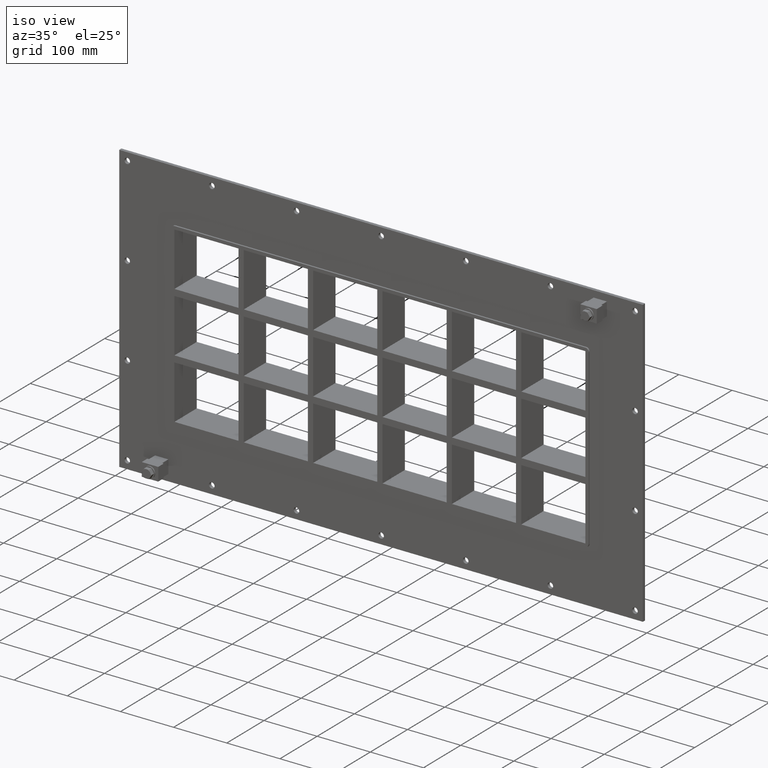
[diagram: clean part render]
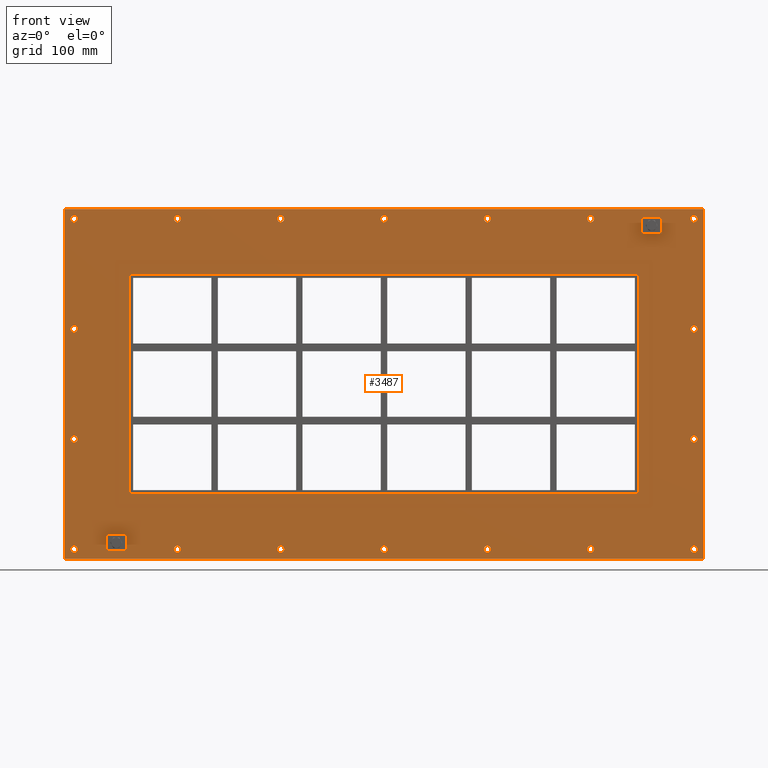
[diagram: tour spotlight — one face highlighted and labeled with its STEP entity id]
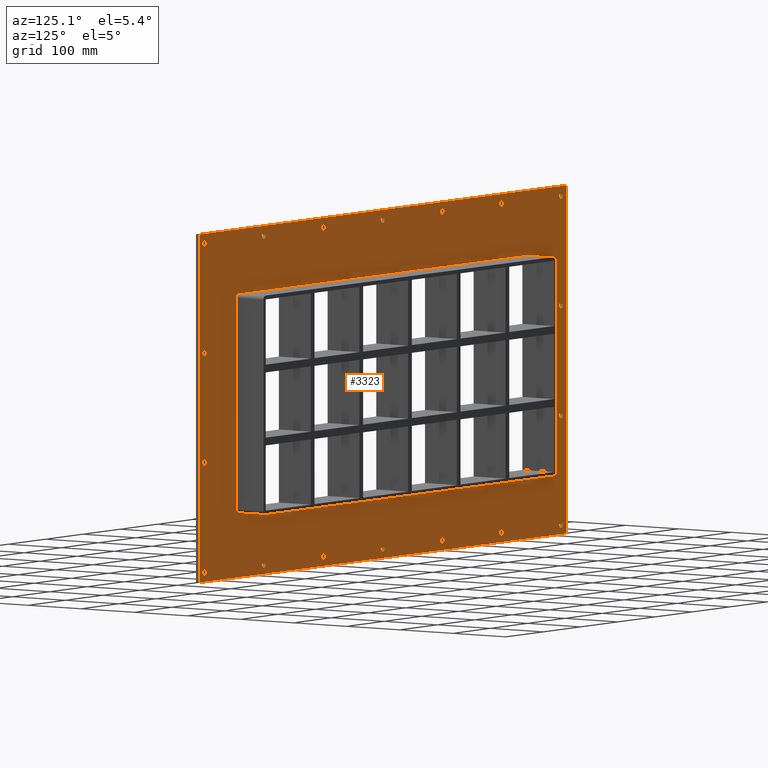
[diagram: tour spotlight — one face highlighted and labeled with its STEP entity id]
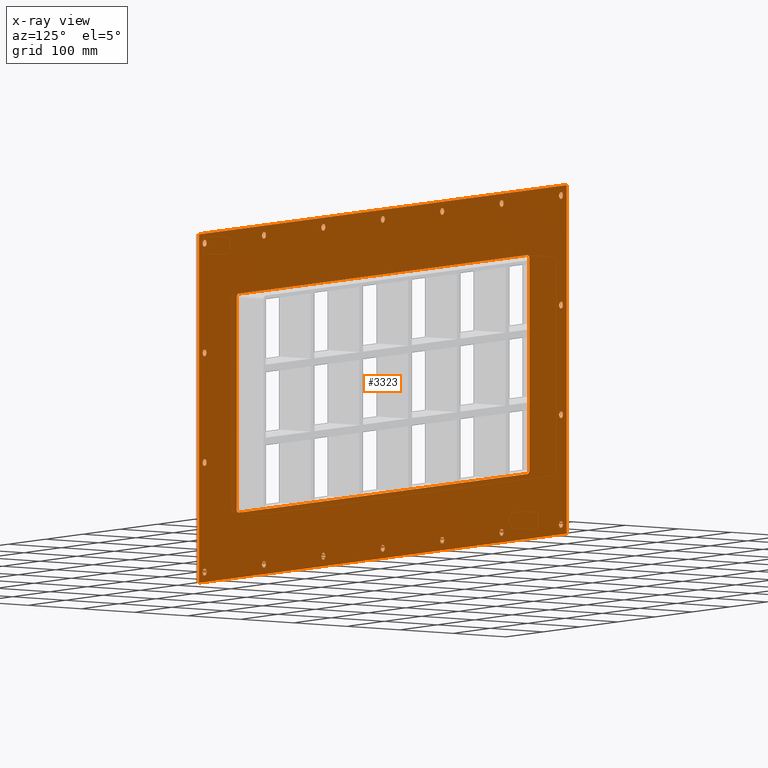
[diagram: x-ray of the same camera — body ghosted, this tour face saturated]
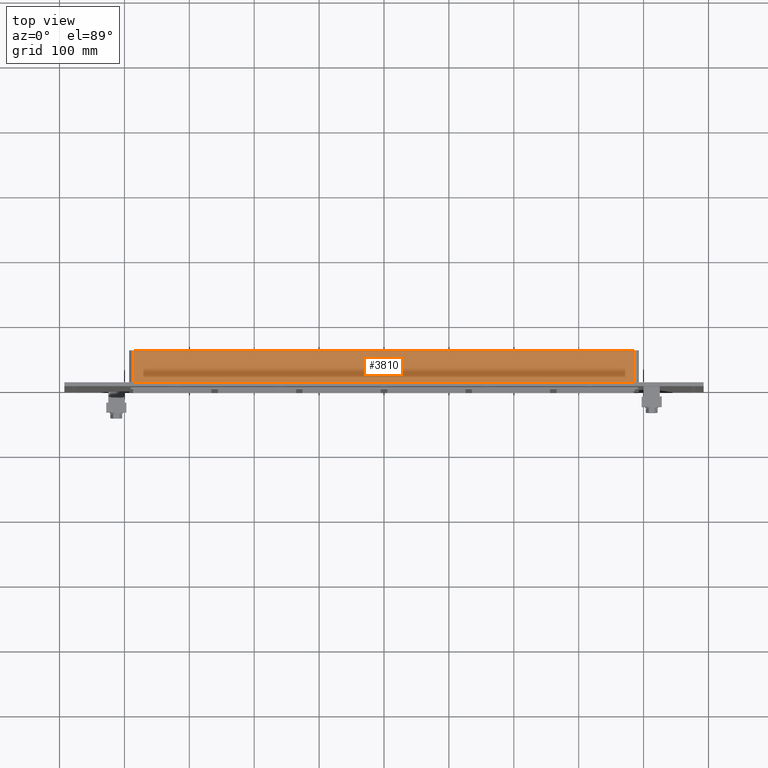
[diagram: tour spotlight — one face highlighted and labeled with its STEP entity id]
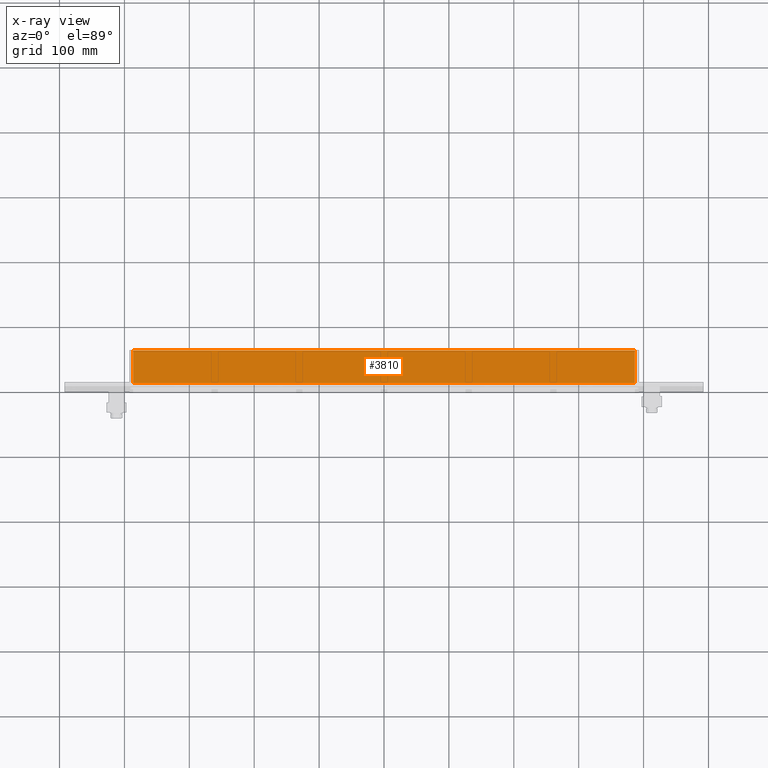
[diagram: x-ray of the same camera — body ghosted, this tour face saturated]
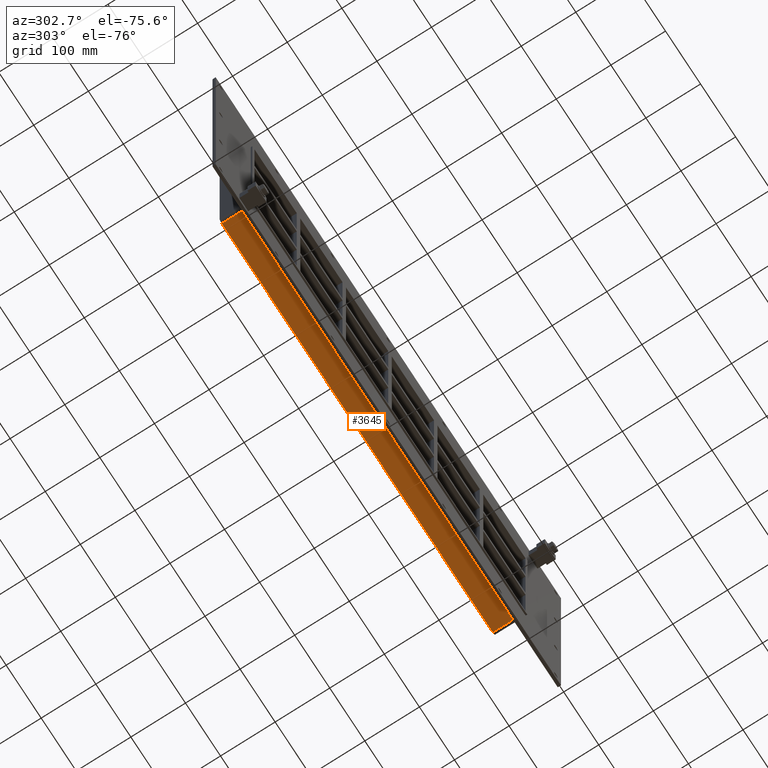
[diagram: tour spotlight — one face highlighted and labeled with its STEP entity id]
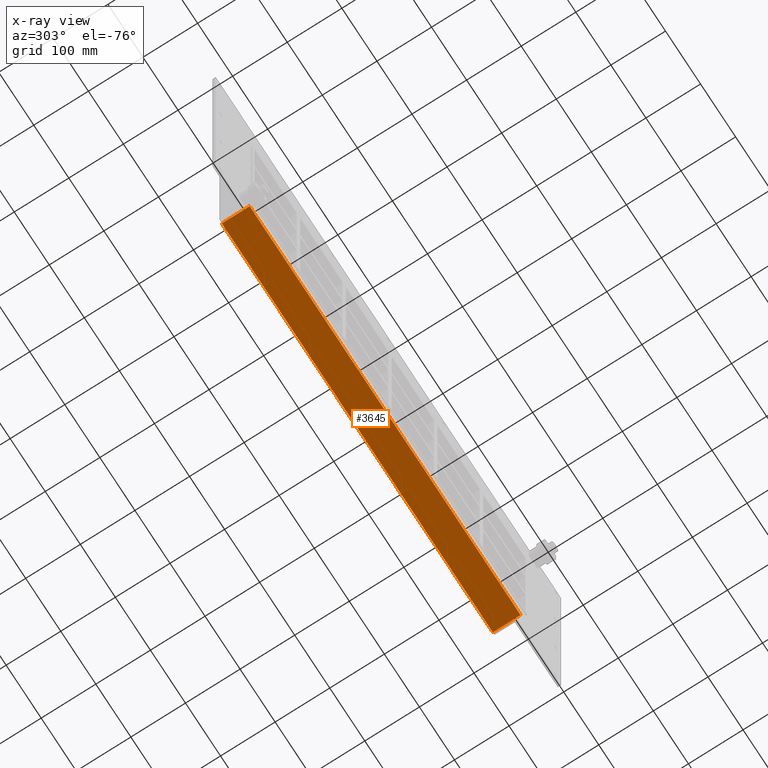
[diagram: x-ray of the same camera — body ghosted, this tour face saturated]
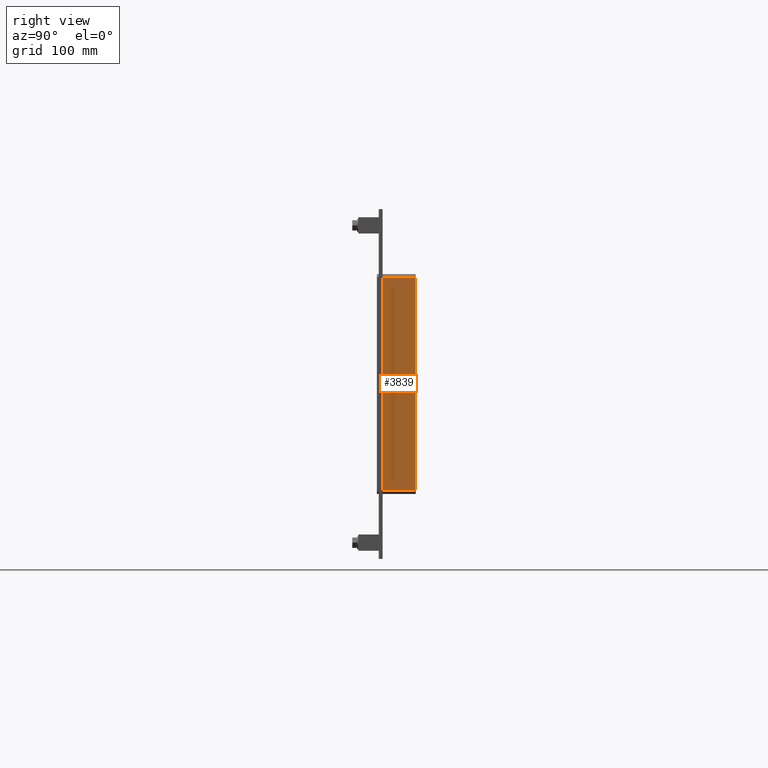
[diagram: tour spotlight — one face highlighted and labeled with its STEP entity id]
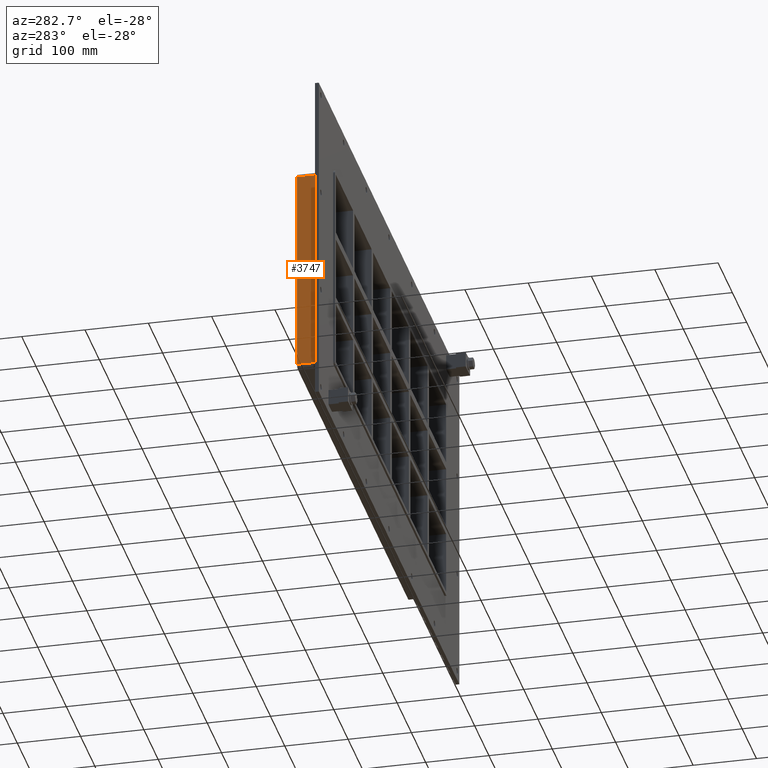
[diagram: tour spotlight — one face highlighted and labeled with its STEP entity id]
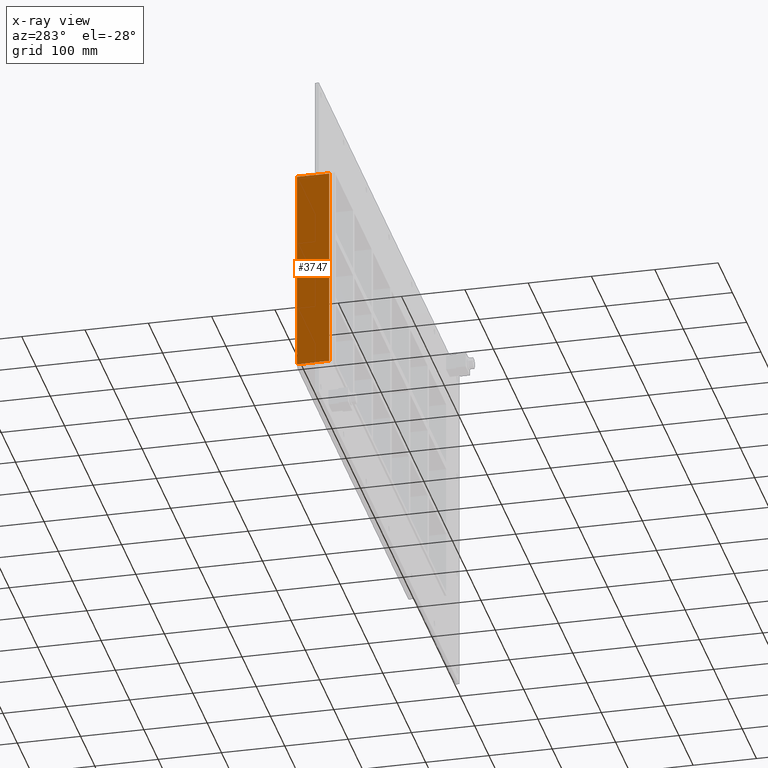
[diagram: x-ray of the same camera — body ghosted, this tour face saturated]
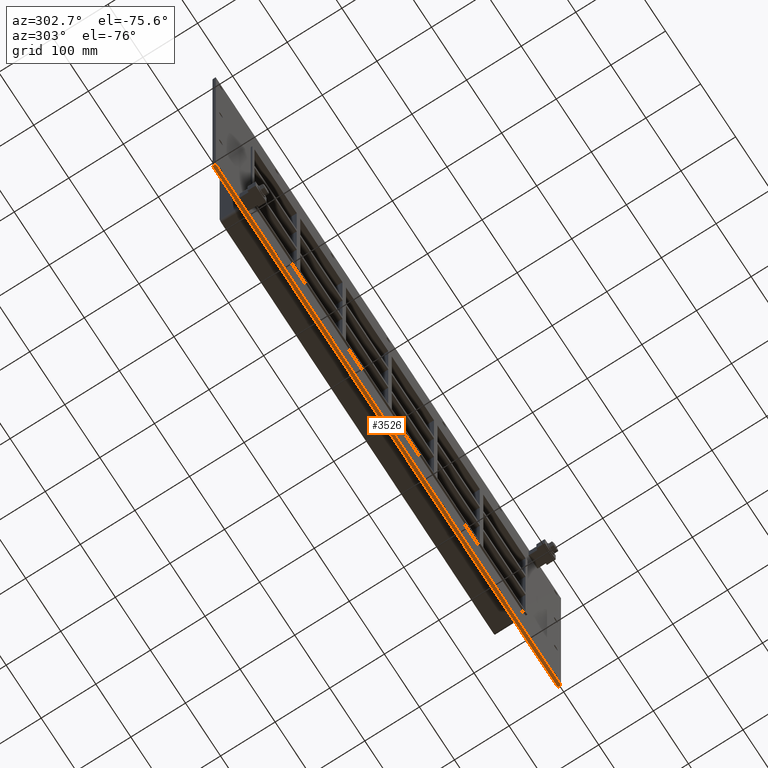
[diagram: tour spotlight — one face highlighted and labeled with its STEP entity id]
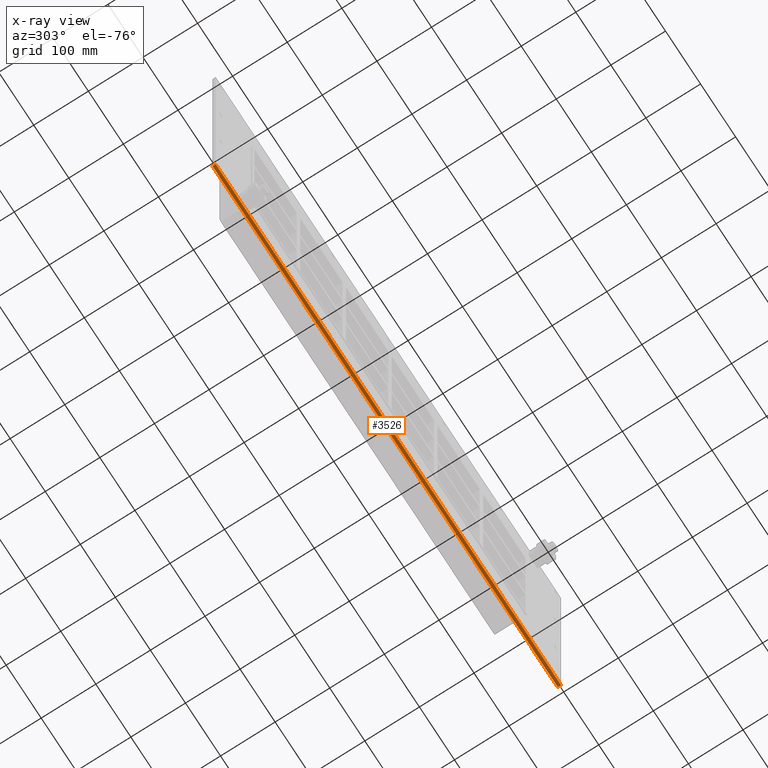
[diagram: x-ray of the same camera — body ghosted, this tour face saturated]
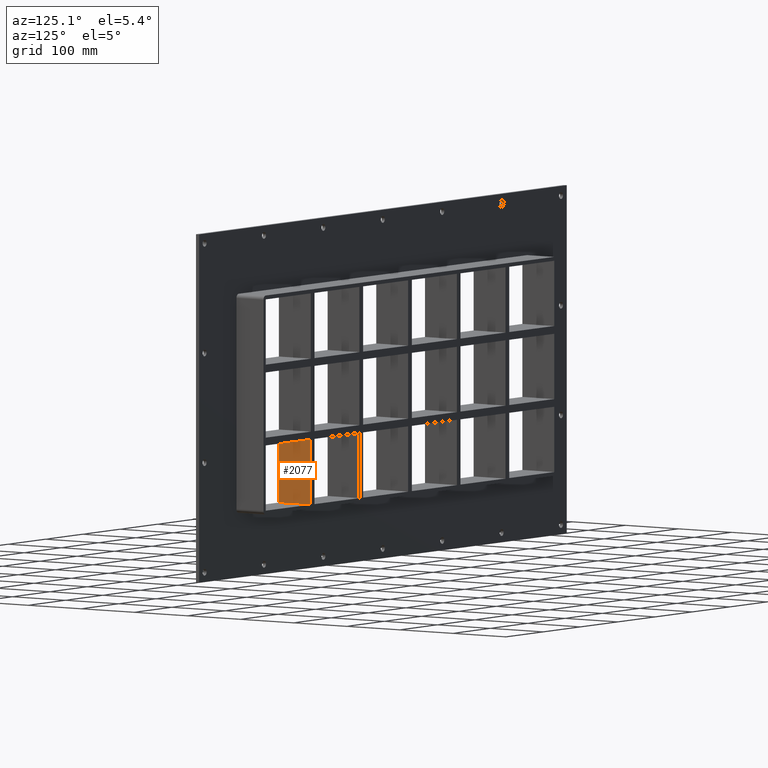
[diagram: tour spotlight — one face highlighted and labeled with its STEP entity id]
A machine part: a face-by-face anatomy tour. The part has 192 B-rep faces; the first image is the clean iso view, then the 8 largest visible faces are spotlighted one at a time (largest first), each with its STEP entity span.

Face 1 — front view, entity #3487. In plain terms, the highlighted planar face has unit normal (0, 1, 0).
Definition (entity closure, byte-faithful):
#84=CARTESIAN_POINT('',(-472.25000000000028,0.0,-254.50000000000014));
#85=VERTEX_POINT('',#84);
#86=CARTESIAN_POINT('',(-477.50000000000028,0.0,-254.50000000000014));
#87=DIRECTION('',(0.0,1.0,0.0));
#88=DIRECTION('',(1.0,0.0,0.0));
#89=AXIS2_PLACEMENT_3D('',#86,#87,#88);
#90=CIRCLE('',#89,5.25);
#91=EDGE_CURVE('',#85,#85,#90,.T.);
#112=CARTESIAN_POINT('',(482.94999999999965,0.0,-84.800000000000153));
#113=VERTEX_POINT('',#112);
#114=CARTESIAN_POINT('',(477.6999999999997,0.0,-84.800000000000153));
#115=DIRECTION('',(0.0,1.0,0.0));
#116=DIRECTION('',(1.0,0.0,0.0));
#117=AXIS2_PLACEMENT_3D('',#114,#115,#116);
#118=CIRCLE('',#117,5.25);
#119=EDGE_CURVE('',#113,#113,#118,.T.);
#140=CARTESIAN_POINT('',(-472.25000000000028,0.0,-84.800000000000153));
#141=VERTEX_POINT('',#140);
#142=CARTESIAN_POINT('',(-477.50000000000028,0.0,-84.800000000000153));
#143=DIRECTION('',(0.0,1.0,0.0));
#144=DIRECTION('',(1.0,0.0,0.0));
#145=AXIS2_PLACEMENT_3D('',#142,#143,#144);
#146=CIRCLE('',#145,5.25);
#147=EDGE_CURVE('',#141,#141,#146,.T.);
#168=CARTESIAN_POINT('',(482.94999999999965,0.0,84.899999999999835));
#169=VERTEX_POINT('',#168);
#170=CARTESIAN_POINT('',(477.6999999999997,0.0,84.899999999999835));
#171=DIRECTION('',(0.0,1.0,0.0));
#172=DIRECTION('',(1.0,0.0,0.0));
#173=AXIS2_PLACEMENT_3D('',#170,#171,#172);
#174=CIRCLE('',#173,5.25);
#175=EDGE_CURVE('',#169,#169,#174,.T.);
#196=CARTESIAN_POINT('',(-472.25000000000028,0.0,84.899999999999835));
#197=VERTEX_POINT('',#196);
#198=CARTESIAN_POINT('',(-477.50000000000028,0.0,84.899999999999835));
#199=DIRECTION('',(0.0,1.0,0.0));
#200=DIRECTION('',(1.0,0.0,0.0));
#201=AXIS2_PLACEMENT_3D('',#198,#199,#200);
#202=CIRCLE('',#201,5.25);
#203=EDGE_CURVE('',#197,#197,#202,.T.);
#224=CARTESIAN_POINT('',(-313.0500000000003,0.0,254.59999999999982));
#225=VERTEX_POINT('',#224);
#226=CARTESIAN_POINT('',(-318.3000000000003,0.0,254.59999999999982));
#227=DIRECTION('',(0.0,1.0,0.0));
#228=DIRECTION('',(1.0,0.0,0.0));
#229=AXIS2_PLACEMENT_3D('',#226,#227,#228);
#230=CIRCLE('',#229,5.25);
#231=EDGE_CURVE('',#225,#225,#230,.T.);
#252=CARTESIAN_POINT('',(-313.0500000000003,0.0,-254.50000000000011));
#253=VERTEX_POINT('',#252);
#254=CARTESIAN_POINT('',(-318.3000000000003,0.0,-254.50000000000011));
#255=DIRECTION('',(0.0,1.0,0.0));
#256=DIRECTION('',(1.0,0.0,0.0));
#257=AXIS2_PLACEMENT_3D('',#254,#255,#256);
#258=CIRCLE('',#257,5.25);
#259=EDGE_CURVE('',#253,#253,#258,.T.);
#280=CARTESIAN_POINT('',(-153.85000000000031,0.0,254.59999999999982));
#281=VERTEX_POINT('',#280);
#282=CARTESIAN_POINT('',(-159.10000000000031,0.0,254.59999999999982));
#283=DIRECTION('',(0.0,1.0,0.0));
#284=DIRECTION('',(1.0,0.0,0.0));
#285=AXIS2_PLACEMENT_3D('',#282,#283,#284);
#286=CIRCLE('',#285,5.25);
#287=EDGE_CURVE('',#281,#281,#286,.T.);
#308=CARTESIAN_POINT('',(-153.85000000000031,0.0,-254.50000000000011));
#309=VERTEX_POINT('',#308);
#310=CARTESIAN_POINT('',(-159.10000000000031,0.0,-254.50000000000011));
#311=DIRECTION('',(0.0,1.0,0.0));
#312=DIRECTION('',(1.0,0.0,0.0));
#313=AXIS2_PLACEMENT_3D('',#310,#311,#312);
#314=CIRCLE('',#313,5.25);
#315=EDGE_CURVE('',#309,#309,#314,.T.);
#336=CARTESIAN_POINT('',(5.349999999999699,0.0,254.59999999999982));
#337=VERTEX_POINT('',#336);
#338=CARTESIAN_POINT('',(0.099999999999714,0.0,254.59999999999982));
#339=DIRECTION('',(0.0,1.0,0.0));
#340=DIRECTION('',(1.0,0.0,0.0));
#341=AXIS2_PLACEMENT_3D('',#338,#339,#340);
#342=CIRCLE('',#341,5.25);
#343=EDGE_CURVE('',#337,#337,#342,.T.);
#364=CARTESIAN_POINT('',(5.349999999999699,0.0,-254.50000000000011));
#365=VERTEX_POINT('',#364);
#366=CARTESIAN_POINT('',(0.099999999999714,0.0,-254.50000000000011));
#367=DIRECTION('',(0.0,1.0,0.0));
#368=DIRECTION('',(1.0,0.0,0.0));
#369=AXIS2_PLACEMENT_3D('',#366,#367,#368);
#370=CIRCLE('',#369,5.25);
#371=EDGE_CURVE('',#365,#365,#370,.T.);
#392=CARTESIAN_POINT('',(164.54999999999961,0.0,254.59999999999982));
#393=VERTEX_POINT('',#392);
#394=CARTESIAN_POINT('',(159.29999999999967,0.0,254.59999999999982));
#395=DIRECTION('',(0.0,1.0,0.0));
#396=DIRECTION('',(1.0,0.0,0.0));
#397=AXIS2_PLACEMENT_3D('',#394,#395,#396);
#398=CIRCLE('',#397,5.25);
#399=EDGE_CURVE('',#393,#393,#398,.T.);
#420=CARTESIAN_POINT('',(164.54999999999961,0.0,-254.50000000000011));
#421=VERTEX_POINT('',#420);
#422=CARTESIAN_POINT('',(159.29999999999967,0.0,-254.50000000000011));
#423=DIRECTION('',(0.0,1.0,0.0));
#424=DIRECTION('',(1.0,0.0,0.0));
#425=AXIS2_PLACEMENT_3D('',#422,#423,#424);
#426=CIRCLE('',#425,5.25);
#427=EDGE_CURVE('',#421,#421,#426,.T.);
#448=CARTESIAN_POINT('',(323.74999999999966,0.0,254.59999999999982));
#449=VERTEX_POINT('',#448);
#450=CARTESIAN_POINT('',(318.49999999999966,0.0,254.59999999999982));
#451=DIRECTION('',(0.0,1.0,0.0));
#452=DIRECTION('',(1.0,0.0,0.0));
#453=AXIS2_PLACEMENT_3D('',#450,#451,#452);
#454=CIRCLE('',#453,5.25);
#455=EDGE_CURVE('',#449,#449,#454,.T.);
#476=CARTESIAN_POINT('',(323.74999999999966,0.0,-254.50000000000011));
#477=VERTEX_POINT('',#476);
#478=CARTESIAN_POINT('',(318.49999999999966,0.0,-254.50000000000011));
#479=DIRECTION('',(0.0,1.0,0.0));
#480=DIRECTION('',(1.0,0.0,0.0));
#481=AXIS2_PLACEMENT_3D('',#478,#479,#480);
#482=CIRCLE('',#481,5.25);
#483=EDGE_CURVE('',#477,#477,#482,.T.);
#504=CARTESIAN_POINT('',(482.94999999999965,0.0,-254.50000000000011));
#505=VERTEX_POINT('',#504);
#506=CARTESIAN_POINT('',(477.6999999999997,0.0,-254.50000000000011));
#507=DIRECTION('',(0.0,1.0,0.0));
#508=DIRECTION('',(1.0,0.0,0.0));
#509=AXIS2_PLACEMENT_3D('',#506,#507,#508);
#510=CIRCLE('',#509,5.25);
#511=EDGE_CURVE('',#505,#505,#510,.T.);
#532=CARTESIAN_POINT('',(-472.25000000000028,0.0,254.59999999999982));
#533=VERTEX_POINT('',#532);
#534=CARTESIAN_POINT('',(-477.50000000000028,0.0,254.59999999999982));
#535=DIRECTION('',(0.0,1.0,0.0));
#536=DIRECTION('',(1.0,0.0,0.0));
#537=AXIS2_PLACEMENT_3D('',#534,#535,#536);
#538=CIRCLE('',#537,5.25);
#539=EDGE_CURVE('',#533,#533,#538,.T.);
#560=CARTESIAN_POINT('',(482.94999999999965,0.0,254.59999999999982));
#561=VERTEX_POINT('',#560);
#562=CARTESIAN_POINT('',(477.6999999999997,0.0,254.59999999999982));
#563=DIRECTION('',(0.0,1.0,0.0));
#564=DIRECTION('',(1.0,0.0,0.0));
#565=AXIS2_PLACEMENT_3D('',#562,#563,#564);
#566=CIRCLE('',#565,5.25);
#567=EDGE_CURVE('',#561,#561,#566,.T.);
#3324=CARTESIAN_POINT('',(-4.475860E-014,0.0,0.0));
#3325=DIRECTION('',(0.0,1.0,0.0));
#3326=DIRECTION('',(0.0,0.0,1.0));
#3327=AXIS2_PLACEMENT_3D('',#3324,#3325,#3326);
#3328=PLANE('',#3327);
#3329=CARTESIAN_POINT('',(-492.50000000000011,0.0,269.50000000000011));
#3330=VERTEX_POINT('',#3329);
#3331=CARTESIAN_POINT('',(492.50000000000006,0.0,269.50000000000011));
#3332=VERTEX_POINT('',#3331);
#3333=CARTESIAN_POINT('',(-492.50000000000011,0.0,269.50000000000011));
#3334=DIRECTION('',(1.0,0.0,0.0));
#3335=VECTOR('',#3334,985.00000000000023);
#3336=LINE('',#3333,#3335);
#3337=EDGE_CURVE('',#3330,#3332,#3336,.T.);
#3338=ORIENTED_EDGE('',*,*,#3337,.F.);
#3339=CARTESIAN_POINT('',(-492.50000000000011,0.0,-269.50000000000011));
#3340=VERTEX_POINT('',#3339);
#3341=CARTESIAN_POINT('',(-492.50000000000011,0.0,-269.50000000000011));
#3342=DIRECTION('',(0.0,0.0,1.0));
#3343=VECTOR('',#3342,539.00000000000023);
#3344=LINE('',#3341,#3343);
#3345=EDGE_CURVE('',#3340,#3330,#3344,.T.);
#3346=ORIENTED_EDGE('',*,*,#3345,.F.);
#3347=CARTESIAN_POINT('',(492.50000000000006,0.0,-269.50000000000011));
#3348=VERTEX_POINT('',#3347);
#3349=CARTESIAN_POINT('',(492.50000000000006,0.0,-269.50000000000011));
#3350=DIRECTION('',(-1.0,0.0,0.0));
#3351=VECTOR('',#3350,985.00000000000023);
#3352=LINE('',#3349,#3351);
#3353=EDGE_CURVE('',#3348,#3340,#3352,.T.);
#3354=ORIENTED_EDGE('',*,*,#3353,.F.);
#3355=CARTESIAN_POINT('',(492.50000000000006,0.0,269.50000000000011));
#3356=DIRECTION('',(0.0,0.0,-1.0));
#3357=VECTOR('',#3356,539.00000000000023);
#3358=LINE('',#3355,#3357);
#3359=EDGE_CURVE('',#3332,#3348,#3358,.T.);
#3360=ORIENTED_EDGE('',*,*,#3359,.F.);
#3361=EDGE_LOOP('',(#3338,#3346,#3354,#3360));
#3362=FACE_OUTER_BOUND('',#3361,.T.);
#3363=ORIENTED_EDGE('',*,*,#91,.T.);
#3364=EDGE_LOOP('',(#3363));
#3365=FACE_BOUND('',#3364,.T.);
#3366=ORIENTED_EDGE('',*,*,#119,.T.);
#3367=EDGE_LOOP('',(#3366));
#3368=FACE_BOUND('',#3367,.T.);
#3369=ORIENTED_EDGE('',*,*,#147,.T.);
#3370=EDGE_LOOP('',(#3369));
#3371=FACE_BOUND('',#3370,.T.);
#3372=ORIENTED_EDGE('',*,*,#175,.T.);
#3373=EDGE_LOOP('',(#3372));
#3374=FACE_BOUND('',#3373,.T.);
#3375=ORIENTED_EDGE('',*,*,#203,.T.);
#3376=EDGE_LOOP('',(#3375));
#3377=FACE_BOUND('',#3376,.T.);
#3378=ORIENTED_EDGE('',*,*,#231,.T.);
#3379=EDGE_LOOP('',(#3378));
#3380=FACE_BOUND('',#3379,.T.);
#3381=ORIENTED_EDGE('',*,*,#259,.T.);
#3382=EDGE_LOOP('',(#3381));
#3383=FACE_BOUND('',#3382,.T.);
#3384=ORIENTED_EDGE('',*,*,#287,.T.);
#3385=EDGE_LOOP('',(#3384));
#3386=FACE_BOUND('',#3385,.T.);
#3387=ORIENTED_EDGE('',*,*,#315,.T.);
#3388=EDGE_LOOP('',(#3387));
#3389=FACE_BOUND('',#3388,.T.);
#3390=ORIENTED_EDGE('',*,*,#343,.T.);
#3391=EDGE_LOOP('',(#3390));
#3392=FACE_BOUND('',#3391,.T.);
#3393=ORIENTED_EDGE('',*,*,#371,.T.);
#3394=EDGE_LOOP('',(#3393));
#3395=FACE_BOUND('',#3394,.T.);
#3396=ORIENTED_EDGE('',*,*,#399,.T.);
#3397=EDGE_LOOP('',(#3396));
#3398=FACE_BOUND('',#3397,.T.);
#3399=ORIENTED_EDGE('',*,*,#427,.T.);
#3400=EDGE_LOOP('',(#3399));
#3401=FACE_BOUND('',#3400,.T.);
#3402=ORIENTED_EDGE('',*,*,#455,.T.);
#3403=EDGE_LOOP('',(#3402));
#3404=FACE_BOUND('',#3403,.T.);
#3405=ORIENTED_EDGE('',*,*,#483,.T.);
#3406=EDGE_LOOP('',(#3405));
#3407=FACE_BOUND('',#3406,.T.);
#3408=ORIENTED_EDGE('',*,*,#511,.T.);
#3409=EDGE_LOOP('',(#3408));
#3410=FACE_BOUND('',#3409,.T.);
#3411=ORIENTED_EDGE('',*,*,#539,.T.);
#3412=EDGE_LOOP('',(#3411));
#3413=FACE_BOUND('',#3412,.T.);
#3414=ORIENTED_EDGE('',*,*,#567,.T.);
#3415=EDGE_LOOP('',(#3414));
#3416=FACE_BOUND('',#3415,.T.);
#3417=CARTESIAN_POINT('',(-386.50000000000006,0.0,169.50000000000006));
#3418=VERTEX_POINT('',#3417);
#3419=CARTESIAN_POINT('',(-392.50000000000006,0.0,163.50000000000006));
#3420=VERTEX_POINT('',#3419);
#3421=CARTESIAN_POINT('',(-386.50000000000006,0.0,163.50000000000006));
#3422=DIRECTION('',(0.0,-1.0,0.0));
#3423=DIRECTION('',(-0.707106781186543,0.0,0.707106781186552));
#3424=AXIS2_PLACEMENT_3D('',#3421,#3422,#3423);
#3425=CIRCLE('',#3424,6.000000000000001);
#3426=EDGE_CURVE('',#3418,#3420,#3425,.T.);
#3427=ORIENTED_EDGE('',*,*,#3426,.F.);
#3428=CARTESIAN_POINT('',(386.50000000000006,0.0,169.50000000000006));
#3429=VERTEX_POINT('',#3428);
#3430=CARTESIAN_POINT('',(386.50000000000006,0.0,169.50000000000006));
#3431=DIRECTION('',(-1.0,0.0,0.0));
#3432=VECTOR('',#3431,773.00000000000011);
#3433=LINE('',#3430,#3432);
#3434=EDGE_CURVE('',#3429,#3418,#3433,.T.);
#3435=ORIENTED_EDGE('',*,*,#3434,.F.);
#3436=CARTESIAN_POINT('',(392.50000000000006,0.0,163.50000000000006));
#3437=VERTEX_POINT('',#3436);
#3438=CARTESIAN_POINT('',(386.50000000000006,0.0,163.50000000000006));
#3439=DIRECTION('',(0.0,-1.0,0.0));
#3440=DIRECTION('',(0.707106781186543,0.0,0.707106781186552));
#3441=AXIS2_PLACEMENT_3D('',#3438,#3439,#3440);
#3442=CIRCLE('',#3441,6.000000000000001);
#3443=EDGE_CURVE('',#3437,#3429,#3442,.T.);
#3444=ORIENTED_EDGE('',*,*,#3443,.F.);
#3445=CARTESIAN_POINT('',(392.50000000000006,0.0,-163.5));
#3446=VERTEX_POINT('',#3445);
#3447=CARTESIAN_POINT('',(392.50000000000006,0.0,-163.5));
#3448=DIRECTION('',(0.0,0.0,1.0));
#3449=VECTOR('',#3448,327.00000000000006);
#3450=LINE('',#3447,#3449);
#3451=EDGE_CURVE('',#3446,#3437,#3450,.T.);
#3452=ORIENTED_EDGE('',*,*,#3451,.F.);
#3453=CARTESIAN_POINT('',(386.50000000000006,0.0,-169.50000000000003));
#3454=VERTEX_POINT('',#3453);
#3455=CARTESIAN_POINT('',(386.50000000000006,0.0,-163.5));
#3456=DIRECTION('',(0.0,-1.0,0.0));
#3457=DIRECTION('',(0.707106781186543,0.0,-0.707106781186552));
#3458=AXIS2_PLACEMENT_3D('',#3455,#3456,#3457);
#3459=CIRCLE('',#3458,6.000000000000001);
#3460=EDGE_CURVE('',#3454,#3446,#3459,.T.);
#3461=ORIENTED_EDGE('',*,*,#3460,.F.);
#3462=CARTESIAN_POINT('',(-386.50000000000006,0.0,-169.50000000000003));
#3463=VERTEX_POINT('',#3462);
#3464=CARTESIAN_POINT('',(-386.5,0.0,-169.50000000000003));
#3465=DIRECTION('',(1.0,0.0,0.0));
#3466=VECTOR('',#3465,773.0);
#3467=LINE('',#3464,#3466);
#3468=EDGE_CURVE('',#3463,#3454,#3467,.T.);
#3469=ORIENTED_EDGE('',*,*,#3468,.F.);
#3470=CARTESIAN_POINT('',(-392.50000000000006,0.0,-163.5));
#3471=VERTEX_POINT('',#3470);
#3472=CARTESIAN_POINT('',(-386.50000000000006,0.0,-163.5));
#3473=DIRECTION('',(0.0,-1.0,0.0));
#3474=DIRECTION('',(-0.707106781186543,0.0,-0.707106781186552));
#3475=AXIS2_PLACEMENT_3D('',#3472,#3473,#3474);
#3476=CIRCLE('',#3475,6.000000000000001);
#3477=EDGE_CURVE('',#3471,#3463,#3476,.T.);
#3478=ORIENTED_EDGE('',*,*,#3477,.F.);
#3479=CARTESIAN_POINT('',(-392.50000000000006,0.0,163.50000000000003));
#3480=DIRECTION('',(0.0,0.0,-1.0));
#3481=VECTOR('',#3480,327.0);
#3482=LINE('',#3479,#3481);
#3483=EDGE_CURVE('',#3420,#3471,#3482,.T.);
#3484=ORIENTED_EDGE('',*,*,#3483,.F.);
#3485=EDGE_LOOP('',(#3427,#3435,#3444,#3452,#3461,#3469,#3478,#3484));
#3486=FACE_BOUND('',#3485,.T.);
#3487=ADVANCED_FACE('',(#3362,#3365,#3368,#3371,#3374,#3377,#3380,#3383,#3386,#3389,#3392,#3395,#3398,#3401,#3404,#3407,#3410,#3413,#3416,#3486),#3328,.F.);

Face 2 — auxiliary view, entity #3323. An x-ray twin of the same camera follows (body ghosted, this face saturated) — the face is partly hidden behind the body. In plain terms, the highlighted planar face has unit normal (0, 1, 0).
Definition (entity closure, byte-faithful):
#73=CARTESIAN_POINT('',(-482.75000000000028,5.999999999999943,-254.50000000000014));
#74=VERTEX_POINT('',#73);
#75=CARTESIAN_POINT('',(-477.50000000000028,5.999999999999943,-254.50000000000014));
#76=DIRECTION('',(0.0,-1.0,0.0));
#77=DIRECTION('',(1.0,0.0,0.0));
#78=AXIS2_PLACEMENT_3D('',#75,#76,#77);
#79=CIRCLE('',#78,5.25);
#80=EDGE_CURVE('',#74,#74,#79,.T.);
#101=CARTESIAN_POINT('',(472.4499999999997,5.999999999999943,-84.800000000000153));
#102=VERTEX_POINT('',#101);
#103=CARTESIAN_POINT('',(477.6999999999997,5.999999999999943,-84.800000000000153));
#104=DIRECTION('',(0.0,-1.0,0.0));
#105=DIRECTION('',(1.0,0.0,0.0));
#106=AXIS2_PLACEMENT_3D('',#103,#104,#105);
#107=CIRCLE('',#106,5.25);
#108=EDGE_CURVE('',#102,#102,#107,.T.);
#129=CARTESIAN_POINT('',(-482.75000000000028,5.999999999999943,-84.800000000000153));
#130=VERTEX_POINT('',#129);
#131=CARTESIAN_POINT('',(-477.50000000000028,5.999999999999943,-84.800000000000153));
#132=DIRECTION('',(0.0,-1.0,0.0));
#133=DIRECTION('',(1.0,0.0,0.0));
#134=AXIS2_PLACEMENT_3D('',#131,#132,#133);
#135=CIRCLE('',#134,5.25);
#136=EDGE_CURVE('',#130,#130,#135,.T.);
#157=CARTESIAN_POINT('',(472.4499999999997,5.999999999999943,84.899999999999835));
#158=VERTEX_POINT('',#157);
#159=CARTESIAN_POINT('',(477.6999999999997,5.999999999999943,84.899999999999835));
#160=DIRECTION('',(0.0,-1.0,0.0));
#161=DIRECTION('',(1.0,0.0,0.0));
#162=AXIS2_PLACEMENT_3D('',#159,#160,#161);
#163=CIRCLE('',#162,5.25);
#164=EDGE_CURVE('',#158,#158,#163,.T.);
#185=CARTESIAN_POINT('',(-482.75000000000028,5.999999999999943,84.899999999999835));
#186=VERTEX_POINT('',#185);
#187=CARTESIAN_POINT('',(-477.50000000000028,5.999999999999943,84.899999999999835));
#188=DIRECTION('',(0.0,-1.0,0.0));
#189=DIRECTION('',(1.0,0.0,0.0));
#190=AXIS2_PLACEMENT_3D('',#187,#188,#189);
#191=CIRCLE('',#190,5.25);
#192=EDGE_CURVE('',#186,#186,#191,.T.);
#213=CARTESIAN_POINT('',(-323.55000000000024,5.999999999999943,254.59999999999982));
#214=VERTEX_POINT('',#213);
#215=CARTESIAN_POINT('',(-318.3000000000003,5.999999999999943,254.59999999999982));
#216=DIRECTION('',(0.0,-1.0,0.0));
#217=DIRECTION('',(1.0,0.0,0.0));
#218=AXIS2_PLACEMENT_3D('',#215,#216,#217);
#219=CIRCLE('',#218,5.25);
#220=EDGE_CURVE('',#214,#214,#219,.T.);
#241=CARTESIAN_POINT('',(-323.55000000000024,5.999999999999943,-254.50000000000011));
#242=VERTEX_POINT('',#241);
#243=CARTESIAN_POINT('',(-318.3000000000003,5.999999999999943,-254.50000000000011));
#244=DIRECTION('',(0.0,-1.0,0.0));
#245=DIRECTION('',(1.0,0.0,0.0));
#246=AXIS2_PLACEMENT_3D('',#243,#244,#245);
#247=CIRCLE('',#246,5.25);
#248=EDGE_CURVE('',#242,#242,#247,.T.);
#269=CARTESIAN_POINT('',(-164.35000000000031,5.999999999999943,254.59999999999982));
#270=VERTEX_POINT('',#269);
#271=CARTESIAN_POINT('',(-159.10000000000031,5.999999999999943,254.59999999999982));
#272=DIRECTION('',(0.0,-1.0,0.0));
#273=DIRECTION('',(1.0,0.0,0.0));
#274=AXIS2_PLACEMENT_3D('',#271,#272,#273);
#275=CIRCLE('',#274,5.25);
#276=EDGE_CURVE('',#270,#270,#275,.T.);
#297=CARTESIAN_POINT('',(-164.35000000000031,5.999999999999943,-254.50000000000011));
#298=VERTEX_POINT('',#297);
#299=CARTESIAN_POINT('',(-159.10000000000031,5.999999999999943,-254.50000000000011));
#300=DIRECTION('',(0.0,-1.0,0.0));
#301=DIRECTION('',(1.0,0.0,0.0));
#302=AXIS2_PLACEMENT_3D('',#299,#300,#301);
#303=CIRCLE('',#302,5.25);
#304=EDGE_CURVE('',#298,#298,#303,.T.);
#325=CARTESIAN_POINT('',(-5.150000000000272,5.999999999999943,254.59999999999982));
#326=VERTEX_POINT('',#325);
#327=CARTESIAN_POINT('',(0.099999999999714,5.999999999999943,254.59999999999982));
#328=DIRECTION('',(0.0,-1.0,0.0));
#329=DIRECTION('',(1.0,0.0,0.0));
#330=AXIS2_PLACEMENT_3D('',#327,#328,#329);
#331=CIRCLE('',#330,5.25);
#332=EDGE_CURVE('',#326,#326,#331,.T.);
#353=CARTESIAN_POINT('',(-5.150000000000272,5.999999999999943,-254.50000000000011));
#354=VERTEX_POINT('',#353);
#355=CARTESIAN_POINT('',(0.099999999999714,5.999999999999943,-254.50000000000011));
#356=DIRECTION('',(0.0,-1.0,0.0));
#357=DIRECTION('',(1.0,0.0,0.0));
#358=AXIS2_PLACEMENT_3D('',#355,#356,#357);
#359=CIRCLE('',#358,5.25);
#360=EDGE_CURVE('',#354,#354,#359,.T.);
#381=CARTESIAN_POINT('',(154.04999999999967,5.999999999999943,254.59999999999982));
#382=VERTEX_POINT('',#381);
#383=CARTESIAN_POINT('',(159.29999999999967,5.999999999999943,254.59999999999982));
#384=DIRECTION('',(0.0,-1.0,0.0));
#385=DIRECTION('',(1.0,0.0,0.0));
#386=AXIS2_PLACEMENT_3D('',#383,#384,#385);
#387=CIRCLE('',#386,5.25);
#388=EDGE_CURVE('',#382,#382,#387,.T.);
#409=CARTESIAN_POINT('',(154.04999999999967,5.999999999999943,-254.50000000000011));
#410=VERTEX_POINT('',#409);
#411=CARTESIAN_POINT('',(159.29999999999967,5.999999999999943,-254.50000000000011));
#412=DIRECTION('',(0.0,-1.0,0.0));
#413=DIRECTION('',(1.0,0.0,0.0));
#414=AXIS2_PLACEMENT_3D('',#411,#412,#413);
#415=CIRCLE('',#414,5.25);
#416=EDGE_CURVE('',#410,#410,#415,.T.);
#437=CARTESIAN_POINT('',(313.24999999999966,5.999999999999943,254.59999999999982));
#438=VERTEX_POINT('',#437);
#439=CARTESIAN_POINT('',(318.49999999999966,5.999999999999943,254.59999999999982));
#440=DIRECTION('',(0.0,-1.0,0.0));
#441=DIRECTION('',(1.0,0.0,0.0));
#442=AXIS2_PLACEMENT_3D('',#439,#440,#441);
#443=CIRCLE('',#442,5.25);
#444=EDGE_CURVE('',#438,#438,#443,.T.);
#465=CARTESIAN_POINT('',(313.24999999999966,5.999999999999943,-254.50000000000011));
#466=VERTEX_POINT('',#465);
#467=CARTESIAN_POINT('',(318.49999999999966,5.999999999999943,-254.50000000000011));
#468=DIRECTION('',(0.0,-1.0,0.0));
#469=DIRECTION('',(1.0,0.0,0.0));
#470=AXIS2_PLACEMENT_3D('',#467,#468,#469);
#471=CIRCLE('',#470,5.25);
#472=EDGE_CURVE('',#466,#466,#471,.T.);
#493=CARTESIAN_POINT('',(472.4499999999997,5.999999999999943,-254.50000000000011));
#494=VERTEX_POINT('',#493);
#495=CARTESIAN_POINT('',(477.6999999999997,5.999999999999943,-254.50000000000011));
#496=DIRECTION('',(0.0,-1.0,0.0));
#497=DIRECTION('',(1.0,0.0,0.0));
#498=AXIS2_PLACEMENT_3D('',#495,#496,#497);
#499=CIRCLE('',#498,5.25);
#500=EDGE_CURVE('',#494,#494,#499,.T.);
#521=CARTESIAN_POINT('',(-482.75000000000028,5.999999999999943,254.59999999999982));
#522=VERTEX_POINT('',#521);
#523=CARTESIAN_POINT('',(-477.50000000000028,5.999999999999943,254.59999999999982));
#524=DIRECTION('',(0.0,-1.0,0.0));
#525=DIRECTION('',(1.0,0.0,0.0));
#526=AXIS2_PLACEMENT_3D('',#523,#524,#525);
#527=CIRCLE('',#526,5.25);
#528=EDGE_CURVE('',#522,#522,#527,.T.);
#549=CARTESIAN_POINT('',(472.4499999999997,5.999999999999943,254.59999999999982));
#550=VERTEX_POINT('',#549);
#551=CARTESIAN_POINT('',(477.6999999999997,5.999999999999943,254.59999999999982));
#552=DIRECTION('',(0.0,-1.0,0.0));
#553=DIRECTION('',(1.0,0.0,0.0));
#554=AXIS2_PLACEMENT_3D('',#551,#552,#553);
#555=CIRCLE('',#554,5.25);
#556=EDGE_CURVE('',#550,#550,#555,.T.);
#3160=CARTESIAN_POINT('',(-4.475860E-014,6.000000000000001,0.0));
#3161=DIRECTION('',(0.0,1.0,0.0));
#3162=DIRECTION('',(0.0,0.0,1.0));
#3163=AXIS2_PLACEMENT_3D('',#3160,#3161,#3162);
#3164=PLANE('',#3163);
#3165=CARTESIAN_POINT('',(-492.50000000000011,6.000000000000001,269.50000000000011));
#3166=VERTEX_POINT('',#3165);
#3167=CARTESIAN_POINT('',(492.50000000000011,6.000000000000001,269.50000000000011));
#3168=VERTEX_POINT('',#3167);
#3169=CARTESIAN_POINT('',(-492.50000000000011,6.000000000000001,269.50000000000011));
#3170=DIRECTION('',(1.0,0.0,0.0));
#3171=VECTOR('',#3170,985.00000000000023);
#3172=LINE('',#3169,#3171);
#3173=EDGE_CURVE('',#3166,#3168,#3172,.T.);
#3174=ORIENTED_EDGE('',*,*,#3173,.T.);
#3175=CARTESIAN_POINT('',(492.50000000000011,6.000000000000001,-269.50000000000011));
#3176=VERTEX_POINT('',#3175);
#3177=CARTESIAN_POINT('',(492.50000000000006,6.000000000000001,269.50000000000011));
#3178=DIRECTION('',(0.0,0.0,-1.0));
#3179=VECTOR('',#3178,539.00000000000023);
#3180=LINE('',#3177,#3179);
#3181=EDGE_CURVE('',#3168,#3176,#3180,.T.);
#3182=ORIENTED_EDGE('',*,*,#3181,.T.);
#3183=CARTESIAN_POINT('',(-492.50000000000011,6.000000000000001,-269.50000000000011));
#3184=VERTEX_POINT('',#3183);
#3185=CARTESIAN_POINT('',(492.50000000000006,6.000000000000001,-269.50000000000011));
#3186=DIRECTION('',(-1.0,0.0,0.0));
#3187=VECTOR('',#3186,985.00000000000023);
#3188=LINE('',#3185,#3187);
#3189=EDGE_CURVE('',#3176,#3184,#3188,.T.);
#3190=ORIENTED_EDGE('',*,*,#3189,.T.);
#3191=CARTESIAN_POINT('',(-492.50000000000011,6.000000000000001,-269.50000000000011));
#3192=DIRECTION('',(0.0,0.0,1.0));
#3193=VECTOR('',#3192,539.00000000000023);
#3194=LINE('',#3191,#3193);
#3195=EDGE_CURVE('',#3184,#3166,#3194,.T.);
#3196=ORIENTED_EDGE('',*,*,#3195,.T.);
#3197=EDGE_LOOP('',(#3174,#3182,#3190,#3196));
#3198=FACE_OUTER_BOUND('',#3197,.T.);
#3199=ORIENTED_EDGE('',*,*,#80,.T.);
#3200=EDGE_LOOP('',(#3199));
#3201=FACE_BOUND('',#3200,.T.);
#3202=ORIENTED_EDGE('',*,*,#108,.T.);
#3203=EDGE_LOOP('',(#3202));
#3204=FACE_BOUND('',#3203,.T.);
#3205=ORIENTED_EDGE('',*,*,#136,.T.);
#3206=EDGE_LOOP('',(#3205));
#3207=FACE_BOUND('',#3206,.T.);
#3208=ORIENTED_EDGE('',*,*,#164,.T.);
#3209=EDGE_LOOP('',(#3208));
#3210=FACE_BOUND('',#3209,.T.);
#3211=ORIENTED_EDGE('',*,*,#192,.T.);
#3212=EDGE_LOOP('',(#3211));
#3213=FACE_BOUND('',#3212,.T.);
#3214=ORIENTED_EDGE('',*,*,#220,.T.);
#3215=EDGE_LOOP('',(#3214));
#3216=FACE_BOUND('',#3215,.T.);
#3217=ORIENTED_EDGE('',*,*,#248,.T.);
#3218=EDGE_LOOP('',(#3217));
#3219=FACE_BOUND('',#3218,.T.);
#3220=ORIENTED_EDGE('',*,*,#276,.T.);
#3221=EDGE_LOOP('',(#3220));
#3222=FACE_BOUND('',#3221,.T.);
#3223=ORIENTED_EDGE('',*,*,#304,.T.);
#3224=EDGE_LOOP('',(#3223));
#3225=FACE_BOUND('',#3224,.T.);
#3226=ORIENTED_EDGE('',*,*,#332,.T.);
#3227=EDGE_LOOP('',(#3226));
#3228=FACE_BOUND('',#3227,.T.);
#3229=ORIENTED_EDGE('',*,*,#360,.T.);
#3230=EDGE_LOOP('',(#3229));
#3231=FACE_BOUND('',#3230,.T.);
#3232=ORIENTED_EDGE('',*,*,#388,.T.);
#3233=EDGE_LOOP('',(#3232));
#3234=FACE_BOUND('',#3233,.T.);
#3235=ORIENTED_EDGE('',*,*,#416,.T.);
#3236=EDGE_LOOP('',(#3235));
#3237=FACE_BOUND('',#3236,.T.);
#3238=ORIENTED_EDGE('',*,*,#444,.T.);
#3239=EDGE_LOOP('',(#3238));
#3240=FACE_BOUND('',#3239,.T.);
#3241=ORIENTED_EDGE('',*,*,#472,.T.);
#3242=EDGE_LOOP('',(#3241));
#3243=FACE_BOUND('',#3242,.T.);
#3244=ORIENTED_EDGE('',*,*,#500,.T.);
#3245=EDGE_LOOP('',(#3244));
#3246=FACE_BOUND('',#3245,.T.);
#3247=ORIENTED_EDGE('',*,*,#528,.T.);
#3248=EDGE_LOOP('',(#3247));
#3249=FACE_BOUND('',#3248,.T.);
#3250=ORIENTED_EDGE('',*,*,#556,.T.);
#3251=EDGE_LOOP('',(#3250));
#3252=FACE_BOUND('',#3251,.T.);
#3253=CARTESIAN_POINT('',(-392.50000000000006,6.000000000000001,163.50000000000006));
#3254=VERTEX_POINT('',#3253);
#3255=CARTESIAN_POINT('',(-386.50000000000006,6.000000000000001,169.50000000000006));
#3256=VERTEX_POINT('',#3255);
#3257=CARTESIAN_POINT('',(-386.50000000000006,6.000000000000001,163.50000000000006));
#3258=DIRECTION('',(0.0,1.0,0.0));
#3259=DIRECTION('',(-0.707106781186543,0.0,0.707106781186552));
#3260=AXIS2_PLACEMENT_3D('',#3257,#3258,#3259);
#3261=CIRCLE('',#3260,6.000000000000001);
#3262=EDGE_CURVE('',#3254,#3256,#3261,.T.);
#3263=ORIENTED_EDGE('',*,*,#3262,.F.);
#3264=CARTESIAN_POINT('',(-392.50000000000006,6.000000000000001,-163.5));
#3265=VERTEX_POINT('',#3264);
#3266=CARTESIAN_POINT('',(-392.50000000000006,6.000000000000001,-163.5));
#3267=DIRECTION('',(0.0,0.0,1.0));
#3268=VECTOR('',#3267,327.0);
#3269=LINE('',#3266,#3268);
#3270=EDGE_CURVE('',#3265,#3254,#3269,.T.);
#3271=ORIENTED_EDGE('',*,*,#3270,.F.);
#3272=CARTESIAN_POINT('',(-386.50000000000006,6.000000000000001,-169.50000000000003));
#3273=VERTEX_POINT('',#3272);
#3274=CARTESIAN_POINT('',(-386.50000000000006,6.000000000000001,-163.5));
#3275=DIRECTION('',(0.0,1.0,0.0));
#3276=DIRECTION('',(-0.707106781186543,0.0,-0.707106781186552));
#3277=AXIS2_PLACEMENT_3D('',#3274,#3275,#3276);
#3278=CIRCLE('',#3277,6.000000000000001);
#3279=EDGE_CURVE('',#3273,#3265,#3278,.T.);
#3280=ORIENTED_EDGE('',*,*,#3279,.F.);
#3281=CARTESIAN_POINT('',(386.50000000000006,6.000000000000001,-169.50000000000003));
#3282=VERTEX_POINT('',#3281);
#3283=CARTESIAN_POINT('',(386.50000000000006,6.000000000000001,-169.50000000000003));
#3284=DIRECTION('',(-1.0,0.0,0.0));
#3285=VECTOR('',#3284,773.0);
#3286=LINE('',#3283,#3285);
#3287=EDGE_CURVE('',#3282,#3273,#3286,.T.);
#3288=ORIENTED_EDGE('',*,*,#3287,.F.);
#3289=CARTESIAN_POINT('',(392.50000000000006,6.000000000000001,-163.5));
#3290=VERTEX_POINT('',#3289);
#3291=CARTESIAN_POINT('',(386.50000000000006,6.000000000000001,-163.5));
#3292=DIRECTION('',(0.0,1.0,0.0));
#3293=DIRECTION('',(0.707106781186543,0.0,-0.707106781186552));
#3294=AXIS2_PLACEMENT_3D('',#3291,#3292,#3293);
#3295=CIRCLE('',#3294,6.000000000000001);
#3296=EDGE_CURVE('',#3290,#3282,#3295,.T.);
#3297=ORIENTED_EDGE('',*,*,#3296,.F.);
#3298=CARTESIAN_POINT('',(392.50000000000006,6.000000000000001,163.50000000000006));
#3299=VERTEX_POINT('',#3298);
#3300=CARTESIAN_POINT('',(392.50000000000006,6.000000000000001,163.50000000000006));
#3301=DIRECTION('',(0.0,0.0,-1.0));
#3302=VECTOR('',#3301,327.00000000000006);
#3303=LINE('',#3300,#3302);
#3304=EDGE_CURVE('',#3299,#3290,#3303,.T.);
#3305=ORIENTED_EDGE('',*,*,#3304,.F.);
#3306=CARTESIAN_POINT('',(386.50000000000006,6.000000000000001,169.50000000000006));
#3307=VERTEX_POINT('',#3306);
#3308=CARTESIAN_POINT('',(386.50000000000006,6.000000000000001,163.50000000000006));
#3309=DIRECTION('',(0.0,1.0,0.0));
#3310=DIRECTION('',(0.707106781186543,0.0,0.707106781186552));
#3311=AXIS2_PLACEMENT_3D('',#3308,#3309,#3310);
#3312=CIRCLE('',#3311,6.000000000000001);
#3313=EDGE_CURVE('',#3307,#3299,#3312,.T.);
#3314=ORIENTED_EDGE('',*,*,#3313,.F.);
#3315=CARTESIAN_POINT('',(-386.50000000000006,6.000000000000001,169.50000000000006));
#3316=DIRECTION('',(1.0,0.0,0.0));
#3317=VECTOR('',#3316,773.00000000000011);
#3318=LINE('',#3315,#3317);
#3319=EDGE_CURVE('',#3256,#3307,#3318,.T.);
#3320=ORIENTED_EDGE('',*,*,#3319,.F.);
#3321=EDGE_LOOP('',(#3263,#3271,#3280,#3288,#3297,#3305,#3314,#3320));
#3322=FACE_BOUND('',#3321,.T.);
#3323=ADVANCED_FACE('',(#3198,#3201,#3204,#3207,#3210,#3213,#3216,#3219,#3222,#3225,#3228,#3231,#3234,#3237,#3240,#3243,#3246,#3249,#3252,#3322),#3164,.T.);

Face 3 — top view, entity #3810. An x-ray twin of the same camera follows (body ghosted, this face saturated) — the face is partly hidden behind the body. In plain terms, the highlighted planar face has unit normal (0, 0, 1).
Definition (entity closure, byte-faithful):
#1510=CARTESIAN_POINT('',(-386.50000000000006,57.0,169.50000000000006));
#1511=VERTEX_POINT('',#1510);
#1519=CARTESIAN_POINT('',(386.5,57.0,169.50000000000006));
#1520=VERTEX_POINT('',#1519);
#1521=CARTESIAN_POINT('',(-386.50000000000006,57.0,169.50000000000006));
#1522=DIRECTION('',(1.0,0.0,0.0));
#1523=VECTOR('',#1522,773.0);
#1524=LINE('',#1521,#1523);
#1525=EDGE_CURVE('',#1511,#1520,#1524,.T.);
#3255=CARTESIAN_POINT('',(-386.50000000000006,6.000000000000001,169.50000000000006));
#3256=VERTEX_POINT('',#3255);
#3306=CARTESIAN_POINT('',(386.50000000000006,6.000000000000001,169.50000000000006));
#3307=VERTEX_POINT('',#3306);
#3315=CARTESIAN_POINT('',(-386.50000000000006,6.000000000000001,169.50000000000006));
#3316=DIRECTION('',(1.0,0.0,0.0));
#3317=VECTOR('',#3316,773.00000000000011);
#3318=LINE('',#3315,#3317);
#3319=EDGE_CURVE('',#3256,#3307,#3318,.T.);
#3783=CARTESIAN_POINT('',(-386.50000000000006,6.000000000000001,169.50000000000006));
#3784=DIRECTION('',(0.0,1.0,0.0));
#3785=VECTOR('',#3784,51.0);
#3786=LINE('',#3783,#3785);
#3787=EDGE_CURVE('',#3256,#1511,#3786,.T.);
#3794=CARTESIAN_POINT('',(-392.50000000000006,0.0,169.50000000000006));
#3795=DIRECTION('',(0.0,0.0,1.0));
#3796=DIRECTION('',(1.0,0.0,0.0));
#3797=AXIS2_PLACEMENT_3D('',#3794,#3795,#3796);
#3798=PLANE('',#3797);
#3799=ORIENTED_EDGE('',*,*,#3319,.T.);
#3800=CARTESIAN_POINT('',(386.50000000000006,57.0,169.50000000000006));
#3801=DIRECTION('',(0.0,-1.0,0.0));
#3802=VECTOR('',#3801,51.0);
#3803=LINE('',#3800,#3802);
#3804=EDGE_CURVE('',#1520,#3307,#3803,.T.);
#3805=ORIENTED_EDGE('',*,*,#3804,.F.);
#3806=ORIENTED_EDGE('',*,*,#1525,.F.);
#3807=ORIENTED_EDGE('',*,*,#3787,.F.);
#3808=EDGE_LOOP('',(#3799,#3805,#3806,#3807));
#3809=FACE_OUTER_BOUND('',#3808,.T.);
#3810=ADVANCED_FACE('',(#3809),#3798,.T.);

Face 4 — auxiliary view, entity #3645. An x-ray twin of the same camera follows (body ghosted, this face saturated) — the face is partly hidden behind the body. In plain terms, the highlighted planar face has unit normal (0, 0, -1).
Definition (entity closure, byte-faithful):
#1493=CARTESIAN_POINT('',(-386.5,57.0,-169.50000000000003));
#1494=VERTEX_POINT('',#1493);
#1544=CARTESIAN_POINT('',(386.50000000000006,57.0,-169.50000000000003));
#1545=VERTEX_POINT('',#1544);
#1553=CARTESIAN_POINT('',(386.50000000000006,57.0,-169.50000000000003));
#1554=DIRECTION('',(-1.0,0.0,0.0));
#1555=VECTOR('',#1554,773.0);
#1556=LINE('',#1553,#1555);
#1557=EDGE_CURVE('',#1545,#1494,#1556,.T.);
#3272=CARTESIAN_POINT('',(-386.50000000000006,6.000000000000001,-169.50000000000003));
#3273=VERTEX_POINT('',#3272);
#3281=CARTESIAN_POINT('',(386.50000000000006,6.000000000000001,-169.50000000000003));
#3282=VERTEX_POINT('',#3281);
#3283=CARTESIAN_POINT('',(386.50000000000006,6.000000000000001,-169.50000000000003));
#3284=DIRECTION('',(-1.0,0.0,0.0));
#3285=VECTOR('',#3284,773.0);
#3286=LINE('',#3283,#3285);
#3287=EDGE_CURVE('',#3282,#3273,#3286,.T.);
#3596=CARTESIAN_POINT('',(386.50000000000006,6.000000000000001,-169.50000000000003));
#3597=DIRECTION('',(0.0,1.0,0.0));
#3598=VECTOR('',#3597,51.0);
#3599=LINE('',#3596,#3598);
#3600=EDGE_CURVE('',#3282,#1545,#3599,.T.);
#3629=CARTESIAN_POINT('',(392.50000000000006,0.0,-169.50000000000003));
#3630=DIRECTION('',(0.0,0.0,-1.0));
#3631=DIRECTION('',(-1.0,0.0,0.0));
#3632=AXIS2_PLACEMENT_3D('',#3629,#3630,#3631);
#3633=PLANE('',#3632);
#3634=ORIENTED_EDGE('',*,*,#3287,.T.);
#3635=CARTESIAN_POINT('',(-386.50000000000006,57.0,-169.50000000000003));
#3636=DIRECTION('',(0.0,-1.0,0.0));
#3637=VECTOR('',#3636,51.0);
#3638=LINE('',#3635,#3637);
#3639=EDGE_CURVE('',#1494,#3273,#3638,.T.);
#3640=ORIENTED_EDGE('',*,*,#3639,.F.);
#3641=ORIENTED_EDGE('',*,*,#1557,.F.);
#3642=ORIENTED_EDGE('',*,*,#3600,.F.);
#3643=EDGE_LOOP('',(#3634,#3640,#3641,#3642));
#3644=FACE_OUTER_BOUND('',#3643,.T.);
#3645=ADVANCED_FACE('',(#3644),#3633,.T.);

Face 5 — right view, entity #3839. In plain terms, the highlighted planar face has unit normal (1, 0, 0).
Definition (entity closure, byte-faithful):
#1527=CARTESIAN_POINT('',(392.50000000000006,57.0,163.50000000000006));
#1528=VERTEX_POINT('',#1527);
#1536=CARTESIAN_POINT('',(392.50000000000006,57.0,-163.5));
#1537=VERTEX_POINT('',#1536);
#1538=CARTESIAN_POINT('',(392.50000000000006,57.0,163.50000000000006));
#1539=DIRECTION('',(0.0,0.0,-1.0));
#1540=VECTOR('',#1539,327.00000000000011);
#1541=LINE('',#1538,#1540);
#1542=EDGE_CURVE('',#1528,#1537,#1541,.T.);
#3289=CARTESIAN_POINT('',(392.50000000000006,6.000000000000001,-163.5));
#3290=VERTEX_POINT('',#3289);
#3298=CARTESIAN_POINT('',(392.50000000000006,6.000000000000001,163.50000000000006));
#3299=VERTEX_POINT('',#3298);
#3300=CARTESIAN_POINT('',(392.50000000000006,6.000000000000001,163.50000000000006));
#3301=DIRECTION('',(0.0,0.0,-1.0));
#3302=VECTOR('',#3301,327.00000000000006);
#3303=LINE('',#3300,#3302);
#3304=EDGE_CURVE('',#3299,#3290,#3303,.T.);
#3603=CARTESIAN_POINT('',(392.50000000000006,57.0,-163.5));
#3604=DIRECTION('',(0.0,-1.0,0.0));
#3605=VECTOR('',#3604,51.0);
#3606=LINE('',#3603,#3605);
#3607=EDGE_CURVE('',#1537,#3290,#3606,.T.);
#3817=CARTESIAN_POINT('',(392.50000000000006,6.000000000000001,163.50000000000006));
#3818=DIRECTION('',(0.0,1.0,0.0));
#3819=VECTOR('',#3818,51.0);
#3820=LINE('',#3817,#3819);
#3821=EDGE_CURVE('',#3299,#1528,#3820,.T.);
#3828=CARTESIAN_POINT('',(392.50000000000006,0.0,169.50000000000003));
#3829=DIRECTION('',(1.0,0.0,0.0));
#3830=DIRECTION('',(0.0,0.0,-1.0));
#3831=AXIS2_PLACEMENT_3D('',#3828,#3829,#3830);
#3832=PLANE('',#3831);
#3833=ORIENTED_EDGE('',*,*,#3304,.T.);
#3834=ORIENTED_EDGE('',*,*,#3607,.F.);
#3835=ORIENTED_EDGE('',*,*,#1542,.F.);
#3836=ORIENTED_EDGE('',*,*,#3821,.F.);
#3837=EDGE_LOOP('',(#3833,#3834,#3835,#3836));
#3838=FACE_OUTER_BOUND('',#3837,.T.);
#3839=ADVANCED_FACE('',(#3838),#3832,.T.);

Face 6 — auxiliary view, entity #3747. An x-ray twin of the same camera follows (body ghosted, this face saturated) — the face is partly hidden behind the body. In plain terms, the highlighted planar face has unit normal (-1, 0, 0).
Definition (entity closure, byte-faithful):
#1491=CARTESIAN_POINT('',(-392.50000000000006,57.0,-163.5));
#1492=VERTEX_POINT('',#1491);
#1502=CARTESIAN_POINT('',(-392.50000000000006,57.0,163.50000000000006));
#1503=VERTEX_POINT('',#1502);
#1504=CARTESIAN_POINT('',(-392.50000000000006,57.0,-163.50000000000003));
#1505=DIRECTION('',(0.0,0.0,1.0));
#1506=VECTOR('',#1505,327.00000000000011);
#1507=LINE('',#1504,#1506);
#1508=EDGE_CURVE('',#1492,#1503,#1507,.T.);
#3253=CARTESIAN_POINT('',(-392.50000000000006,6.000000000000001,163.50000000000006));
#3254=VERTEX_POINT('',#3253);
#3264=CARTESIAN_POINT('',(-392.50000000000006,6.000000000000001,-163.5));
#3265=VERTEX_POINT('',#3264);
#3266=CARTESIAN_POINT('',(-392.50000000000006,6.000000000000001,-163.5));
#3267=DIRECTION('',(0.0,0.0,1.0));
#3268=VECTOR('',#3267,327.0);
#3269=LINE('',#3266,#3268);
#3270=EDGE_CURVE('',#3265,#3254,#3269,.T.);
#3686=CARTESIAN_POINT('',(-392.50000000000006,6.000000000000001,-163.5));
#3687=DIRECTION('',(0.0,1.0,0.0));
#3688=VECTOR('',#3687,51.0);
#3689=LINE('',#3686,#3688);
#3690=EDGE_CURVE('',#3265,#1492,#3689,.T.);
#3731=CARTESIAN_POINT('',(-392.50000000000006,0.0,-169.5));
#3732=DIRECTION('',(-1.0,0.0,0.0));
#3733=DIRECTION('',(0.0,0.0,1.0));
#3734=AXIS2_PLACEMENT_3D('',#3731,#3732,#3733);
#3735=PLANE('',#3734);
#3736=ORIENTED_EDGE('',*,*,#3270,.T.);
#3737=CARTESIAN_POINT('',(-392.50000000000006,57.0,163.50000000000006));
#3738=DIRECTION('',(0.0,-1.0,0.0));
#3739=VECTOR('',#3738,51.0);
#3740=LINE('',#3737,#3739);
#3741=EDGE_CURVE('',#1503,#3254,#3740,.T.);
#3742=ORIENTED_EDGE('',*,*,#3741,.F.);
#3743=ORIENTED_EDGE('',*,*,#1508,.F.);
#3744=ORIENTED_EDGE('',*,*,#3690,.F.);
#3745=EDGE_LOOP('',(#3736,#3742,#3743,#3744));
#3746=FACE_OUTER_BOUND('',#3745,.T.);
#3747=ADVANCED_FACE('',(#3746),#3735,.T.);

Face 7 — auxiliary view, entity #3526. An x-ray twin of the same camera follows (body ghosted, this face saturated) — the face is partly hidden behind the body. In plain terms, the highlighted planar face has unit normal (0, 0, -1).
Definition (entity closure, byte-faithful):
#3175=CARTESIAN_POINT('',(492.50000000000011,6.000000000000001,-269.50000000000011));
#3176=VERTEX_POINT('',#3175);
#3183=CARTESIAN_POINT('',(-492.50000000000011,6.000000000000001,-269.50000000000011));
#3184=VERTEX_POINT('',#3183);
#3185=CARTESIAN_POINT('',(492.50000000000006,6.000000000000001,-269.50000000000011));
#3186=DIRECTION('',(-1.0,0.0,0.0));
#3187=VECTOR('',#3186,985.00000000000023);
#3188=LINE('',#3185,#3187);
#3189=EDGE_CURVE('',#3176,#3184,#3188,.T.);
#3339=CARTESIAN_POINT('',(-492.50000000000011,0.0,-269.50000000000011));
#3340=VERTEX_POINT('',#3339);
#3347=CARTESIAN_POINT('',(492.50000000000006,0.0,-269.50000000000011));
#3348=VERTEX_POINT('',#3347);
#3349=CARTESIAN_POINT('',(492.50000000000006,0.0,-269.50000000000011));
#3350=DIRECTION('',(-1.0,0.0,0.0));
#3351=VECTOR('',#3350,985.00000000000023);
#3352=LINE('',#3349,#3351);
#3353=EDGE_CURVE('',#3348,#3340,#3352,.T.);
#3501=CARTESIAN_POINT('',(-492.50000000000011,0.0,-269.50000000000011));
#3502=DIRECTION('',(0.0,1.0,0.0));
#3503=VECTOR('',#3502,6.000000000000001);
#3504=LINE('',#3501,#3503);
#3505=EDGE_CURVE('',#3340,#3184,#3504,.T.);
#3510=CARTESIAN_POINT('',(492.50000000000006,0.0,-269.50000000000011));
#3511=DIRECTION('',(0.0,0.0,-1.0));
#3512=DIRECTION('',(-1.0,0.0,0.0));
#3513=AXIS2_PLACEMENT_3D('',#3510,#3511,#3512);
#3514=PLANE('',#3513);
#3515=ORIENTED_EDGE('',*,*,#3353,.T.);
#3516=ORIENTED_EDGE('',*,*,#3505,.T.);
#3517=ORIENTED_EDGE('',*,*,#3189,.F.);
#3518=CARTESIAN_POINT('',(492.50000000000006,0.0,-269.50000000000011));
#3519=DIRECTION('',(0.0,1.0,0.0));
#3520=VECTOR('',#3519,6.000000000000001);
#3521=LINE('',#3518,#3520);
#3522=EDGE_CURVE('',#3348,#3176,#3521,.T.);
#3523=ORIENTED_EDGE('',*,*,#3522,.F.);
#3524=EDGE_LOOP('',(#3515,#3516,#3517,#3523));
#3525=FACE_OUTER_BOUND('',#3524,.T.);
#3526=ADVANCED_FACE('',(#3525),#3514,.T.);

Face 8 — auxiliary view, entity #2077. In plain terms, the highlighted planar face has unit normal (1, 0, 0).
Definition (entity closure, byte-faithful):
#1933=CARTESIAN_POINT('',(265.99999999999642,57.0,-163.4999999999819));
#1934=VERTEX_POINT('',#1933);
#1951=CARTESIAN_POINT('',(265.99999999999642,57.0,-62.500000000010978));
#1952=VERTEX_POINT('',#1951);
#1959=CARTESIAN_POINT('',(265.99999999999642,57.0,-62.500000000010971));
#1960=DIRECTION('',(0.0,0.0,-1.0));
#1961=VECTOR('',#1960,100.99999999997092);
#1962=LINE('',#1959,#1961);
#1963=EDGE_CURVE('',#1952,#1934,#1962,.T.);
#2047=CARTESIAN_POINT('',(265.99999999999642,-3.0,163.50000000000009));
#2048=DIRECTION('',(1.0,0.0,0.0));
#2049=DIRECTION('',(0.0,0.0,-1.0));
#2050=AXIS2_PLACEMENT_3D('',#2047,#2048,#2049);
#2051=PLANE('',#2050);
#2052=CARTESIAN_POINT('',(265.99999999999642,-3.0,-62.500000000010978));
#2053=VERTEX_POINT('',#2052);
#2054=CARTESIAN_POINT('',(265.99999999999636,-3.0,-62.500000000010957));
#2055=DIRECTION('',(0.0,1.0,0.0));
#2056=VECTOR('',#2055,60.0);
#2057=LINE('',#2054,#2056);
#2058=EDGE_CURVE('',#2053,#1952,#2057,.T.);
#2059=ORIENTED_EDGE('',*,*,#2058,.F.);
#2060=CARTESIAN_POINT('',(265.99999999999642,-3.0,-163.49999999998187));
#2061=VERTEX_POINT('',#2060);
#2062=CARTESIAN_POINT('',(265.99999999999642,-3.0,-62.500000000010971));
#2063=DIRECTION('',(0.0,0.0,-1.0));
#2064=VECTOR('',#2063,100.99999999997092);
#2065=LINE('',#2062,#2064);
#2066=EDGE_CURVE('',#2053,#2061,#2065,.T.);
#2067=ORIENTED_EDGE('',*,*,#2066,.T.);
#2068=CARTESIAN_POINT('',(265.99999999999648,57.000000000000007,-163.50000000000009));
#2069=DIRECTION('',(0.0,-1.0,0.0));
#2070=VECTOR('',#2069,60.000000000000007);
#2071=LINE('',#2068,#2070);
#2072=EDGE_CURVE('',#1934,#2061,#2071,.T.);
#2073=ORIENTED_EDGE('',*,*,#2072,.F.);
#2074=ORIENTED_EDGE('',*,*,#1963,.F.);
#2075=EDGE_LOOP('',(#2059,#2067,#2073,#2074));
#2076=FACE_OUTER_BOUND('',#2075,.T.);
#2077=ADVANCED_FACE('',(#2076),#2051,.T.);